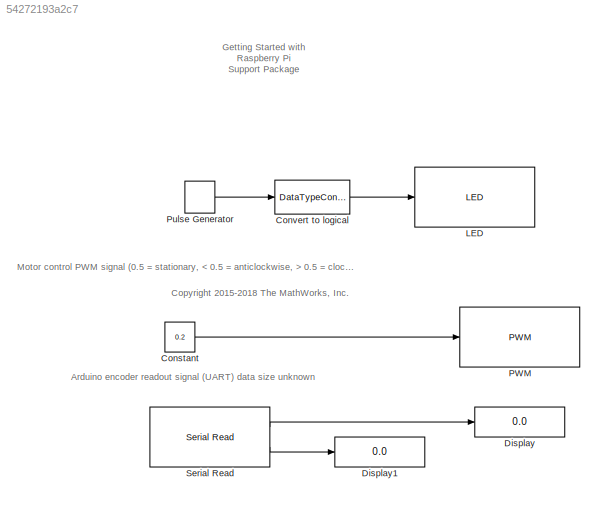
MODEL slx_54272193a2c7
KIND model
CONFIG AbsTol = auto
CONFIG EnableMultiTasking = on
CONFIG FixedStep = auto
CONFIG MaxStep = auto
CONFIG MinStep = auto
CONFIG RelTol = 1e-3
CONFIG SampleTimeConstraint = Unconstrained
CONFIG SolverName = FixedStepDiscrete
CONFIG StartTime = 0.0
CONFIG StopTime = 10.0
BLOCK [Constant] Constant
  Value = 0.2
  VectorParams1D = off
BLOCK [DataTypeConversion] Convert to logical
  RndMeth = Floor
  SaturateOnIntegerOverflow = off
BLOCK [Display] Display
  Decimation = 1
  Ports = [1]
BLOCK [Display] Display1
  Decimation = 1
  Ports = [1]
BLOCK [Reference] LED  REF=embdlinuxlib/LED
  Ports = [1]
  SourceBlock = embdlinuxlib/LED
  SourceProductBaseCode = SC_BEAGLEBONE_BLUE,NVIDIA,RASPPI
  SourceType = LED Write
BLOCK [Reference] PWM  REF=raspberrypiBasiclib/PWM
  Ports = [1]
  SourceBlock = raspberrypiBasiclib/PWM
  SourceProductBaseCode = RASPPI
  SourceType = raspi.internal.PWMBlock
BLOCK [DiscretePulseGenerator] Pulse Generator
  Period = 10
  Ports = [0, 1]
  PulseWidth = 5
  SampleTime = 0.1
BLOCK [Reference] Serial Read  REF=raspberrypiCommlib/Serial Read
  Ports = [0, 2]
  SourceBlock = raspberrypiCommlib/Serial Read
  SourceProductBaseCode = RASPPI
  SourceType = Serial Read
ANNOTATION (root): Arduino encoder readout signal (UART) data size unknown
ANNOTATION (root): <copyright redacted>
ANNOTATION (root): Getting Started with Raspberry Pi Support Package
ANNOTATION (root): Motor control PWM signal (0.5 = stationary, 0.5 = clockwise)
LINE Constant:1 -> PWM:1
LINE Convert to logical:1 -> LED:1
LINE Pulse Generator:1 -> Convert to logical:1
LINE Serial Read:1 -> Display:1
LINE Serial Read:2 -> Display1:1
